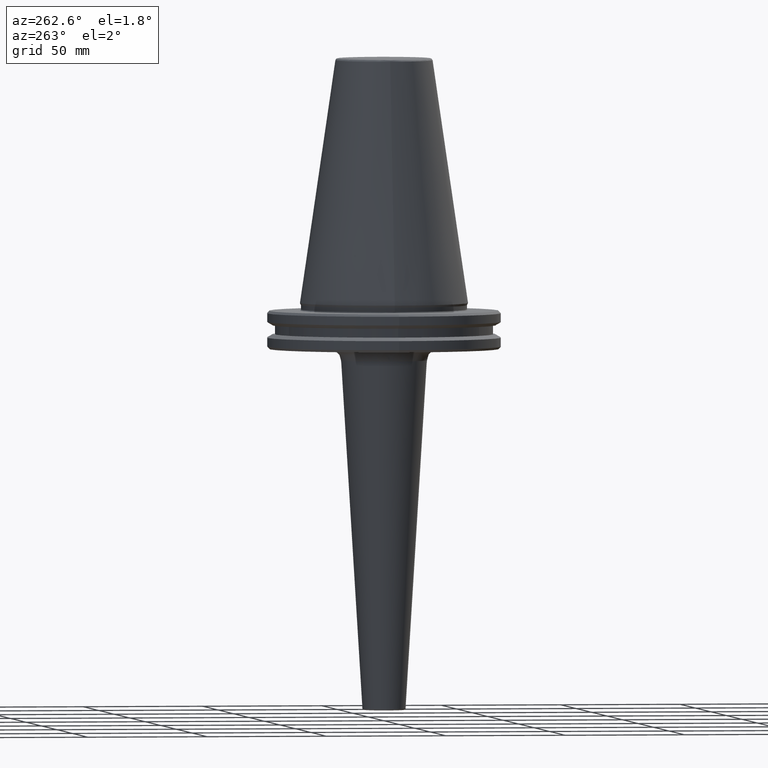
[diagram: clean part render]
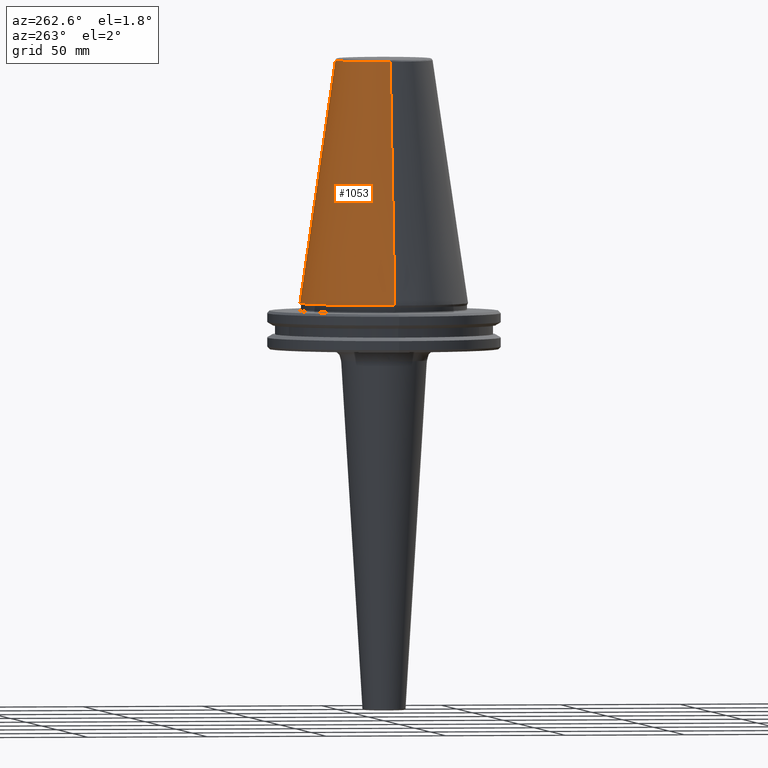
[diagram: same view with one face highlighted and labeled with its STEP entity id]
A machine part, auxiliary view. The second image highlights one B-rep face of the part: STEP entity #1053.
In plain terms, the highlighted conical surface has half-angle 8.297 deg.
Its self-contained STEP definition (entity closure, byte-faithful):
#143 = VERTEX_POINT ( 'NONE', #955 ) ;
#166 = VERTEX_POINT ( 'NONE', #1245 ) ;
#276 = DIRECTION ( 'NONE',  ( -1.000000000000000000, 0.0000000000000000000, 0.0000000000000000000 ) ) ;
#279 = DIRECTION ( 'NONE',  ( -0.0000000000000000000, -0.0000000000000000000, 1.000000000000000000 ) ) ;
#290 = CARTESIAN_POINT ( 'NONE',  ( 0.0000000000000000000, 0.0000000000000000000, 0.0000000000000000000 ) ) ;
#353 = EDGE_LOOP ( 'NONE', ( #1450, #941, #687, #479 ) ) ;
#370 = VERTEX_POINT ( 'NONE', #1297 ) ;
#391 = VERTEX_POINT ( 'NONE', #1547 ) ;
#396 = FACE_OUTER_BOUND ( 'NONE', #353, .T. ) ;
#476 = AXIS2_PLACEMENT_3D ( 'NONE', #624, #620, #609 ) ;
#479 = ORIENTED_EDGE ( 'NONE', *, *, #531, .F. ) ;
#488 = EDGE_CURVE ( 'NONE', #143, #391, #1359, .T. ) ;
#531 = EDGE_CURVE ( 'NONE', #166, #370, #1169, .T. ) ;
#609 = DIRECTION ( 'NONE',  ( -1.000000000000000000, 0.0000000000000000000, 0.0000000000000000000 ) ) ;
#620 = DIRECTION ( 'NONE',  ( 0.0000000000000000000, 0.0000000000000000000, -1.000000000000000000 ) ) ;
#624 = CARTESIAN_POINT ( 'NONE',  ( 0.0000000000000000000, 0.0000000000000000000, -1.387778780781445700E-014 ) ) ;
#687 = ORIENTED_EDGE ( 'NONE', *, *, #1352, .T. ) ;
#766 = DIRECTION ( 'NONE',  ( -1.000000000000000000, 0.0000000000000000000, 0.0000000000000000000 ) ) ;
#769 = DIRECTION ( 'NONE',  ( 0.0000000000000000000, 0.0000000000000000000, -1.000000000000000000 ) ) ;
#772 = CARTESIAN_POINT ( 'NONE',  ( 0.0000000000000000000, 0.0000000000000000000, 100.8943082272673000 ) ) ;
#932 = EDGE_CURVE ( 'NONE', #166, #143, #1409, .T. ) ;
#941 = ORIENTED_EDGE ( 'NONE', *, *, #488, .T. ) ;
#955 = CARTESIAN_POINT ( 'NONE',  ( 20.21110778703758000, 3.376112895941951000E-015, 100.8943082272673000 ) ) ;
#1030 = AXIS2_PLACEMENT_3D ( 'NONE', #772, #769, #766 ) ;
#1053 = ADVANCED_FACE ( 'NONE', ( #396 ), #1092, .T. ) ;
#1092 = CONICAL_SURFACE ( 'NONE', #476, 34.92499999999999700, 0.1448138465474189400 ) ;
#1169 = LINE ( 'NONE', #1308, #1307 ) ;
#1180 = CIRCLE ( 'NONE', #1469, 34.92499999999999700 ) ;
#1230 = DIRECTION ( 'NONE',  ( 0.1443082272673069400, 1.767266086135362400E-017, -0.9895327864921743500 ) ) ;
#1240 = DIRECTION ( 'NONE',  ( -0.1443082272673069400, 0.0000000000000000000, -0.9895327864921743500 ) ) ;
#1245 = CARTESIAN_POINT ( 'NONE',  ( -20.21110778703758000, 0.0000000000000000000, 100.8943082272673000 ) ) ;
#1268 = VECTOR ( 'NONE', #1230, 1000.000000000000000 ) ;
#1297 = CARTESIAN_POINT ( 'NONE',  ( -34.92500000000000400, 4.277078946022131700E-015, 0.0000000000000000000 ) ) ;
#1307 = VECTOR ( 'NONE', #1240, 1000.000000000000000 ) ;
#1308 = CARTESIAN_POINT ( 'NONE',  ( -34.92499999999999700, 0.0000000000000000000, -1.387778780781445700E-014 ) ) ;
#1352 = EDGE_CURVE ( 'NONE', #391, #370, #1180, .T. ) ;
#1359 = LINE ( 'NONE', #1557, #1268 ) ;
#1409 = CIRCLE ( 'NONE', #1030, 20.21110778703758000 ) ;
#1450 = ORIENTED_EDGE ( 'NONE', *, *, #932, .T. ) ;
#1469 = AXIS2_PLACEMENT_3D ( 'NONE', #290, #279, #276 ) ;
#1547 = CARTESIAN_POINT ( 'NONE',  ( 34.92500000000000400, 0.0000000000000000000, 0.0000000000000000000 ) ) ;
#1557 = CARTESIAN_POINT ( 'NONE',  ( 34.92499999999999700, 4.277078946022130900E-015, -1.387778780781445700E-014 ) ) ;